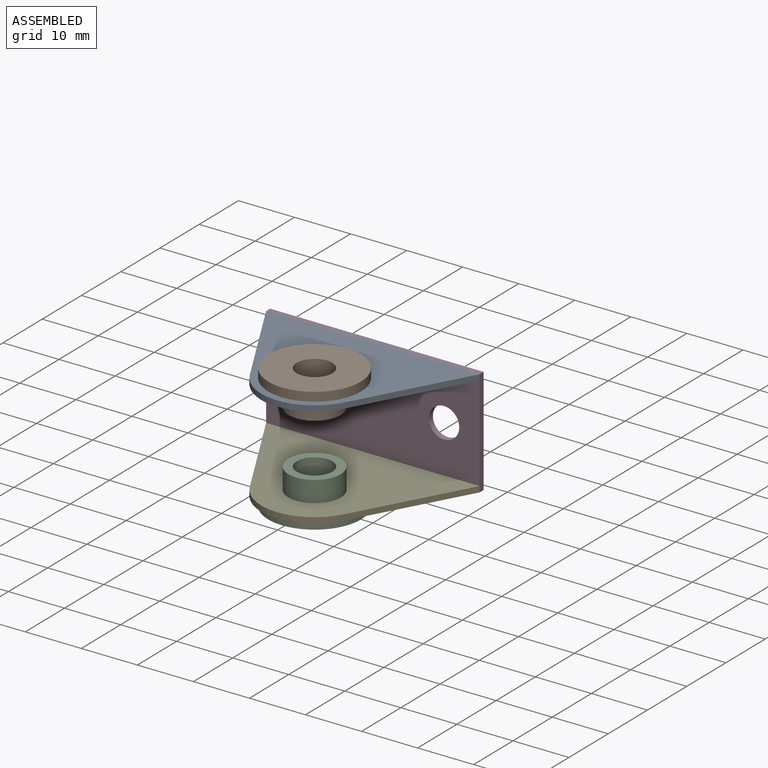
[diagram: assembled view]
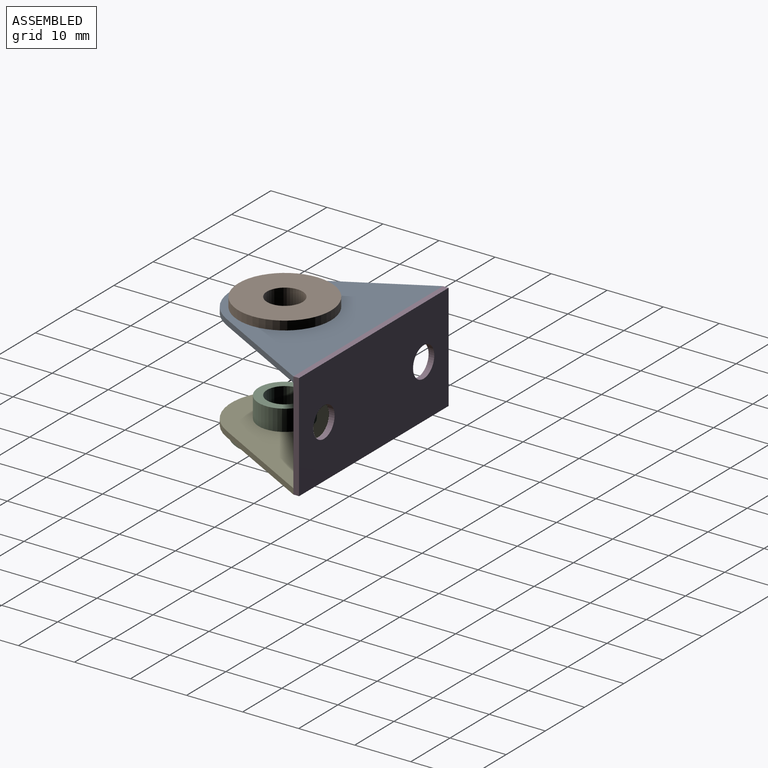
[diagram: assembled view, second angle]
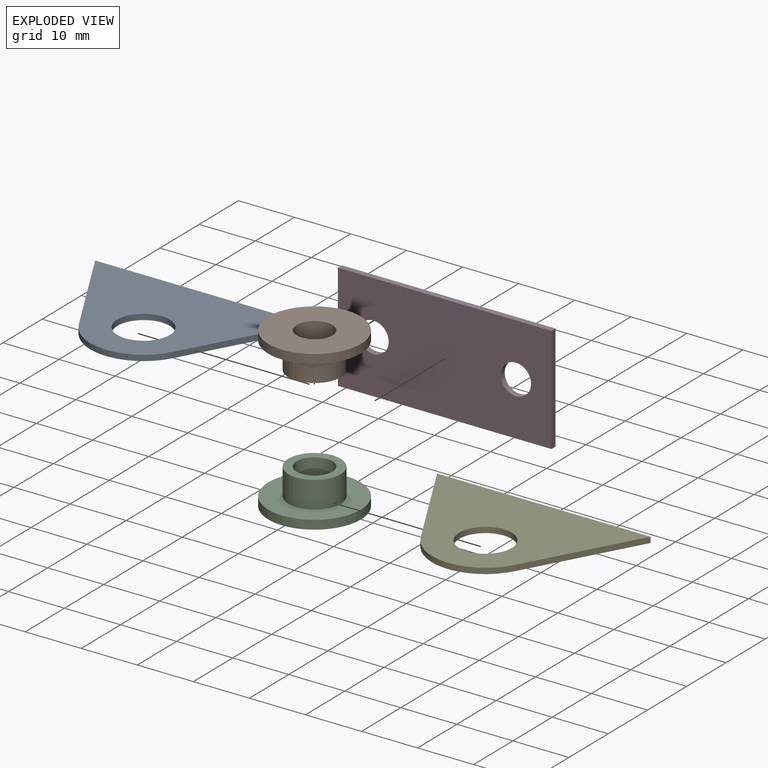
[diagram: exploded view]
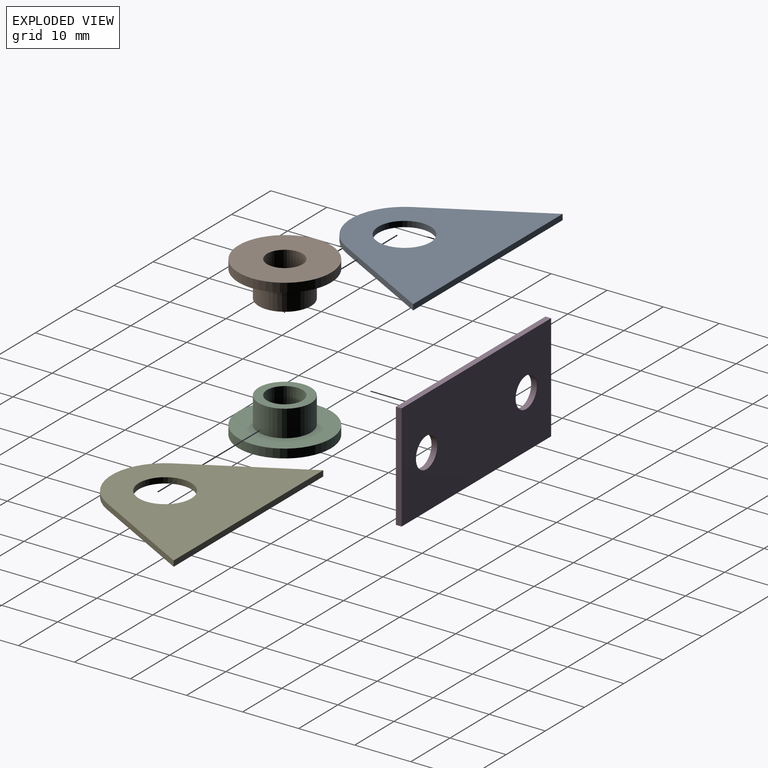
[diagram: exploded view, second angle]
ASSEMBLY  parts=5 mates=4
PART A: 7 faces, bbox 38.1x24.4x1 mm
  f0: plane 19.45x10.71mm, normal (0.88,-0.48,0), area 22.6mm2, adj f1,f3,f4,f5
  f1: cylinder r=9.53mm len=16.69mm, axis (0,0,1), area 20.7mm2, adj f0,f2,f4,f5
  f2: plane 19.45x10.71mm, normal (-0.88,-0.48,0), area 22.6mm2, adj f1,f3,f4,f5
  f3: plane 38.1x1.02mm, normal (0,1,0), area 38.7mm2, adj f0,f2,f4,f5
  f4: plane 38.1x24.38mm, normal (0,0,-1), area 522.8mm2, adj f0,f1,f2,f3,f6
  f5: plane 38.1x24.38mm, normal (0,0,1), area 522.8mm2, adj f0,f1,f2,f3,f6
  f6: cylinder r=4.67mm len=9.35mm, axis (0,0,1), area 29.8mm2, adj f4,f5
PART B: 6 faces, bbox 16.5x16.5x6.4 mm
  f0: plane 16.51x16.51mm, normal (0,0,-1), area 145.5mm2, adj f1,f5
  f1: cylinder r=8.26mm len=16.51mm, axis (0,0,1), area 82.3mm2, adj f0,f2
  f2: plane 16.51x16.51mm, normal (0,0,1), area 182.4mm2, adj f1,f3
  f3: cylinder r=3.17mm len=6.35mm, axis (0,0,1), area 126.7mm2, adj f2,f4
  f4: plane 9.35x9.35mm, normal (0,0,-1), area 37mm2, adj f3,f5
  f5: cylinder r=4.67mm len=9.35mm, axis (0,0,1), area 139.9mm2, adj f0,f4
PART C: 6 faces, bbox 16.5x16.5x6.4 mm
  f0: plane 9.35x9.35mm, normal (0,0,1), area 37mm2, adj f1,f5
  f1: cylinder r=4.67mm len=9.35mm, axis (0,0,1), area 139.9mm2, adj f0,f2
  f2: plane 16.51x16.51mm, normal (0,0,1), area 145.5mm2, adj f1,f3
  f3: cylinder r=8.26mm len=16.51mm, axis (0,0,1), area 82.3mm2, adj f2,f4
  f4: plane 16.51x16.51mm, normal (0,0,-1), area 182.4mm2, adj f3,f5
  f5: cylinder r=3.17mm len=6.35mm, axis (0,0,1), area 126.7mm2, adj f0,f4
PART D: 8 faces, bbox 38.1x1x19.1 mm
  f0: plane 38.1x19.05mm, normal (0,-1,0), area 679.8mm2, adj f2,f3,f4,f5,f6,f7
  f1: plane 38.1x19.05mm, normal (0,1,0), area 679.8mm2, adj f2,f3,f4,f5,f6,f7
  f2: plane 19.05x1.02mm, normal (1,0,0), area 19.4mm2, adj f0,f1,f3,f5
  f3: plane 38.1x1.02mm, normal (0,0,1), area 38.7mm2, adj f0,f1,f2,f4
  f4: plane 19.05x1.02mm, normal (-1,0,0), area 19.4mm2, adj f0,f1,f3,f5
  f5: plane 38.1x1.02mm, normal (0,0,-1), area 38.7mm2, adj f0,f1,f2,f4
  f6: cylinder r=2.71mm len=5.41mm, axis (0,1,0), area 17.3mm2, adj f0,f1
  f7: cylinder r=2.71mm len=5.41mm, axis (0,1,0), area 17.3mm2, adj f0,f1
PART E: 7 faces, bbox 38.1x24.4x1 mm
  f0: plane 38.1x1.02mm, normal (0,1,0), area 38.7mm2, adj f1,f3,f4,f5
  f1: plane 19.45x10.71mm, normal (-0.88,-0.48,0), area 22.6mm2, adj f0,f2,f4,f5
  f2: cylinder r=9.53mm len=16.69mm, axis (0,0,-1), area 20.7mm2, adj f1,f3,f4,f5
  f3: plane 19.45x10.71mm, normal (0.88,-0.48,0), area 22.6mm2, adj f0,f2,f4,f5
  f4: plane 38.1x24.38mm, normal (0,0,1), area 522.8mm2, adj f0,f1,f2,f3,f6
  f5: plane 38.1x24.38mm, normal (0,0,-1), area 522.8mm2, adj f0,f1,f2,f3,f6
  f6: cylinder r=4.67mm len=9.35mm, axis (0,0,-1), area 29.8mm2, adj f4,f5
PLACE A at identity
PLACE B at identity
PLACE C at identity
PLACE D at identity fixed
PLACE E at identity
MATE fastened E.f0 <-> D.f0  axis (0,1,0) through (84.67,-1.02,-9.52)mm
MATE fastened B.f1 <-> A.f1  axis (0,0,-1) through (103.72,-15.87,9.52)mm
MATE fastened C.f1 <-> E.f2  axis (0,0,1) through (103.72,-15.87,-9.52)mm
MATE fastened A.f3 <-> D.f0  axis (0,1,0) through (84.67,-1.02,9.52)mm
